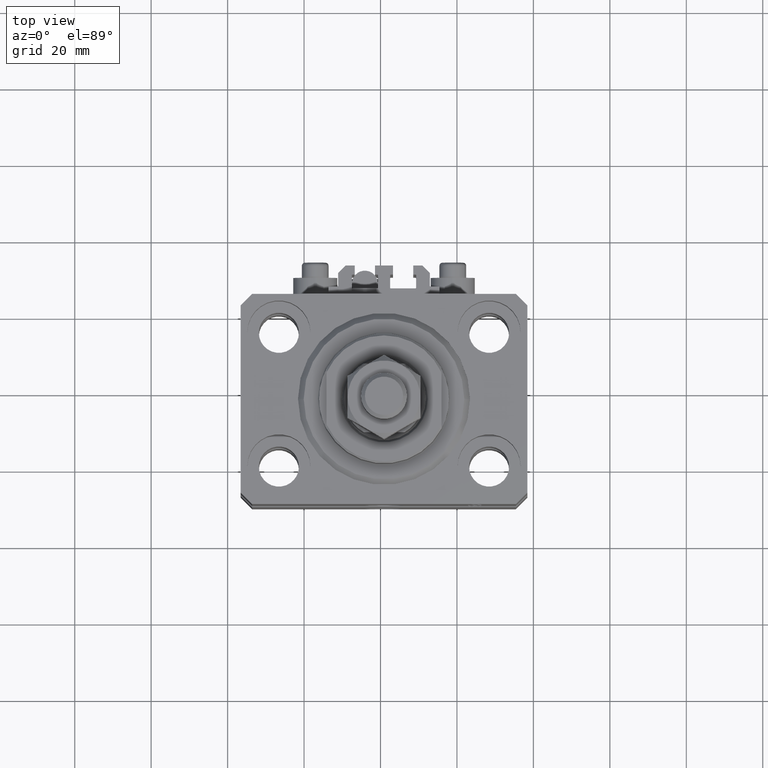
[diagram: clean part render]
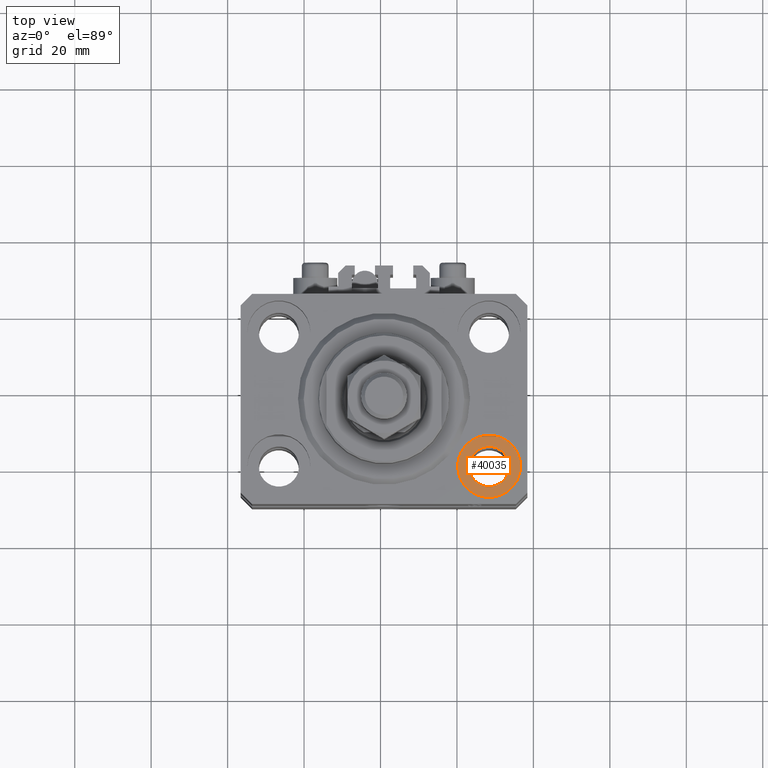
[diagram: same view with one face highlighted and labeled with its STEP entity id]
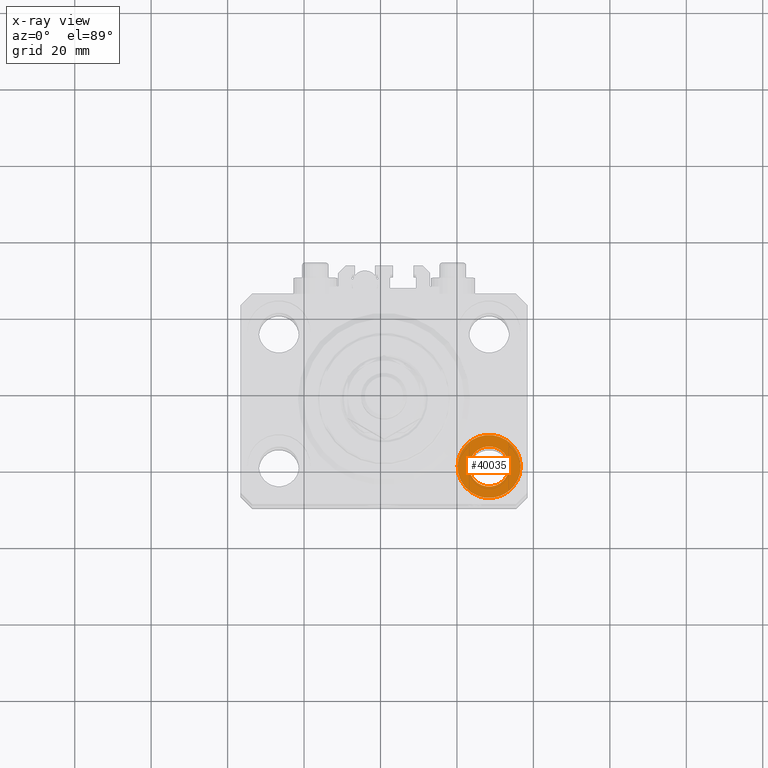
[diagram: x-ray of the same camera — body ghosted, the highlighted face saturated]
A machine part, top view. The second image highlights one B-rep face of the part: STEP entity #40035.
The next image is the same camera in x-ray: the body ghosted, the highlighted face saturated — about 0% of this face is hidden behind the body in this view.
In plain terms, the highlighted planar face has unit normal (0, 0, 1).
Its self-contained STEP definition (entity closure, byte-faithful):
#843 = DIRECTION ( 'NONE',  ( 0.000000000000000000, 0.000000000000000000, 1.000000000000000000 ) ) ;
#1653 = AXIS2_PLACEMENT_3D ( 'NONE', #11095, #10599, #3381 ) ;
#2240 = AXIS2_PLACEMENT_3D ( 'NONE', #43596, #32658, #35655 ) ;
#2393 = ORIENTED_EDGE ( 'NONE', *, *, #44576, .F. ) ;
#2998 = CIRCLE ( 'NONE', #49035, 8.250000000000000000 ) ;
#3255 = DIRECTION ( 'NONE',  ( 1.000000000000000000, 0.000000000000000000, 0.000000000000000000 ) ) ;
#3381 = DIRECTION ( 'NONE',  ( 1.000000000000000000, 0.000000000000000000, 0.000000000000000000 ) ) ;
#4575 = FACE_BOUND ( 'NONE', #20359, .T. ) ;
#6497 = CARTESIAN_POINT ( 'NONE',  ( 27.50000000000000355, -17.50000000000000000, -11.00000000000000000 ) ) ;
#9863 = EDGE_CURVE ( 'NONE', #20746, #38433, #25984, .T. ) ;
#10599 = DIRECTION ( 'NONE',  ( 0.000000000000000000, 0.000000000000000000, 1.000000000000000000 ) ) ;
#11095 = CARTESIAN_POINT ( 'NONE',  ( 27.50000000000000355, -17.50000000000000000, -11.00000000000000000 ) ) ;
#11812 = CARTESIAN_POINT ( 'NONE',  ( 19.25000000000000000, -17.50000000000000000, -11.00000000000000000 ) ) ;
#12046 = DIRECTION ( 'NONE',  ( 1.000000000000000000, 0.000000000000000000, -0.000000000000000000 ) ) ;
#12268 = CARTESIAN_POINT ( 'NONE',  ( 35.75000000000000711, -17.50000000000000000, -11.00000000000000000 ) ) ;
#12539 = CARTESIAN_POINT ( 'NONE',  ( 27.50000000000000355, -17.50000000000000000, -11.00000000000000000 ) ) ;
#14060 = AXIS2_PLACEMENT_3D ( 'NONE', #19565, #24028, #16088 ) ;
#14893 = EDGE_CURVE ( 'NONE', #17682, #23493, #16524, .T. ) ;
#15179 = CARTESIAN_POINT ( 'NONE',  ( 32.75000000000000000, -17.50000000000000000, -11.00000000000000000 ) ) ;
#16088 = DIRECTION ( 'NONE',  ( 1.000000000000000000, 0.000000000000000000, 0.000000000000000000 ) ) ;
#16524 = CIRCLE ( 'NONE', #2240, 5.249999999999997335 ) ;
#17682 = VERTEX_POINT ( 'NONE', #44884 ) ;
#19565 = CARTESIAN_POINT ( 'NONE',  ( 27.50000000000000355, -17.50000000000000000, -11.00000000000000000 ) ) ;
#20359 = EDGE_LOOP ( 'NONE', ( #2393, #40130 ) ) ;
#20746 = VERTEX_POINT ( 'NONE', #12268 ) ;
#23493 = VERTEX_POINT ( 'NONE', #15179 ) ;
#24028 = DIRECTION ( 'NONE',  ( 0.000000000000000000, 0.000000000000000000, 1.000000000000000000 ) ) ;
#25464 = CIRCLE ( 'NONE', #1653, 5.249999999999997335 ) ;
#25984 = CIRCLE ( 'NONE', #14060, 8.250000000000000000 ) ;
#29384 = DIRECTION ( 'NONE',  ( 0.000000000000000000, 0.000000000000000000, 1.000000000000000000 ) ) ;
#30422 = ORIENTED_EDGE ( 'NONE', *, *, #9863, .T. ) ;
#31938 = PLANE ( 'NONE',  #37186 ) ;
#32658 = DIRECTION ( 'NONE',  ( 0.000000000000000000, 0.000000000000000000, 1.000000000000000000 ) ) ;
#34822 = EDGE_CURVE ( 'NONE', #38433, #20746, #2998, .T. ) ;
#35655 = DIRECTION ( 'NONE',  ( 1.000000000000000000, 0.000000000000000000, 0.000000000000000000 ) ) ;
#37186 = AXIS2_PLACEMENT_3D ( 'NONE', #12539, #843, #12046 ) ;
#38433 = VERTEX_POINT ( 'NONE', #11812 ) ;
#40035 = ADVANCED_FACE ( 'NONE', ( #4575, #46594 ), #31938, .T. ) ;
#40130 = ORIENTED_EDGE ( 'NONE', *, *, #14893, .F. ) ;
#43372 = EDGE_LOOP ( 'NONE', ( #30422, #45681 ) ) ;
#43596 = CARTESIAN_POINT ( 'NONE',  ( 27.50000000000000355, -17.50000000000000000, -11.00000000000000000 ) ) ;
#44576 = EDGE_CURVE ( 'NONE', #23493, #17682, #25464, .T. ) ;
#44884 = CARTESIAN_POINT ( 'NONE',  ( 22.25000000000000711, -17.50000000000000000, -11.00000000000000000 ) ) ;
#45681 = ORIENTED_EDGE ( 'NONE', *, *, #34822, .T. ) ;
#46594 = FACE_OUTER_BOUND ( 'NONE', #43372, .T. ) ;
#49035 = AXIS2_PLACEMENT_3D ( 'NONE', #6497, #29384, #3255 ) ;